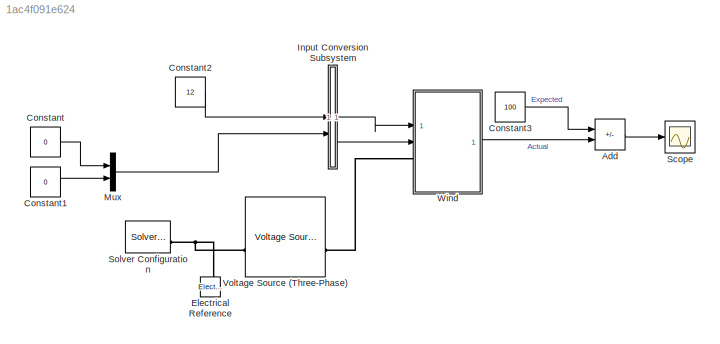
MODEL slx_1ac4f091e624
KIND model
CONFIG AbsTol = auto
CONFIG EnableMultiTasking = off
CONFIG FixedStep = auto
CONFIG MaxStep = auto
CONFIG MinStep = auto
CONFIG RelTol = 1e-3
CONFIG SampleTimeConstraint = Unconstrained
CONFIG SolverName = VariableStepAuto
CONFIG StartTime = 0.0
CONFIG StopTime = 10.0
BLOCK [Sum] Add
  IconShape = rectangular
  Inputs = +-
BLOCK [Constant] Constant
  Value = 0
BLOCK [Constant] Constant1
  Value = 0
BLOCK [Constant] Constant2
  Value = 12
BLOCK [Constant] Constant3
  Value = 100
BLOCK [Reference] Electrical Reference  REF=fl_lib/Electrical/Electrical Elements/Electrical Reference
  NameLocation = right
  SourceBlock = fl_lib/Electrical/Electrical Elements/Electrical Reference
  SourceType = Electrical Reference
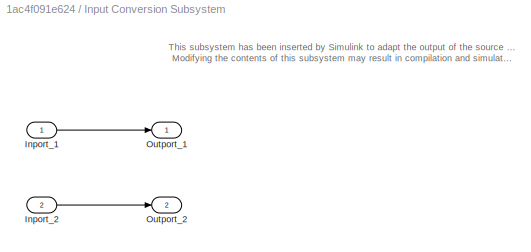
BLOCK [SubSystem] Input Conversion Subsystem
  AttributesFormatString = %<Description>
  Description = Signal spec.\nand routing
  Permissions = ReadOnly
  PermitHierarchicalResolution = ExplicitOnly
  Tag = __SLT_ICS__
  TreatAsGroupedWhenPropagatingVariantConditions = off
  UserDataPersistent = on
BLOCK [Inport] Input Conversion Subsystem/Inport_1
BLOCK [Inport] Input Conversion Subsystem/Inport_2
  Port = 2
BLOCK [Outport] Input Conversion Subsystem/Outport_1
BLOCK [Outport] Input Conversion Subsystem/Outport_2
  Port = 2
BLOCK [Mux] Mux
  DisplayOption = bar
  Inputs = 2
BLOCK [Scope] Scope
  ActiveDisplayYMaximum = 0.16137
  ActiveDisplayYMinimum = -0.01889
  DataLoggingVariableName = ScopeData2
  Floating = off
  GraphicalSettings = {"GraphicalSettings":{"LegacySettings":true,"Style":{"AxesScalingProperties":{"ScaleAxesLimitsAtStop":false},"Style":{"AxesColor":"[0 0 0]","ChannelNames":[""],"ColorOrder":"[1 0.909803921568627 0.392156862745098;0.149019607843137 0.549019607843137 0.866666666666667;0.96078431372549 0.466666666666667 0.16078431372549;0.286274509803922 0.858823529411765 0.250980392156863;0.752941176470588 0.3607843...<+513ch>
  MultipleDisplayCache = [{"MaxYLimMag":0.16137,"MaxYLimReal":0.16137,"MinYLimMag":0,"MinYLimReal":-0.01889,"PlotAsMagnitudePhase":false,"ShowGrid":true,"ShowLegend":false,"Title":"%<SignalLabel>","YLabel":""}]
  NumInputPorts = 1
  WasSavedAsWebScope = on
BLOCK [Reference] Solver Configuration  REF=nesl_utility/Solver
Configuration
  SourceBlock = nesl_utility/Solver\nConfiguration
  SourceType = Solver\nConfiguration
BLOCK [Reference] Voltage Source (Three-Phase)  REF=ee_lib/Sources/Voltage
Source
(Three-Phase)
  SourceBlock = ee_lib/Sources/Voltage\nSource\n(Three-Phase)
  SourceType = Voltage\nSource\n(Three-Phase)
BLOCK [SubSystem] Wind
  ReferencedSubsystem = Wind
  frequency = 60
  maxWindSpeed = 12
  rotorSpeed = 168.3*ones(1,13)
  turbineOutput = 50
  windRating = 100
  windSpeed = [0.0100 1 2 3 4 5 6 7 8 9 10 11 12]
  windingRatio = 1
ANNOTATION Input Conversion Subsystem: This subsystem has been inserted by Simulink to adapt the output of the source blocks to the interface required by the harnessed component. Modifying the contents of this subsystem may result in compilation and simulation failure.
LINE Add:1 -> Scope:1
LINE Constant1:1 -> Mux:2
LINE Constant2:1 -> Input Conversion Subsystem:1
LINE Constant3:1 -> Add:1
LINE Constant:1 -> Mux:1
LINE Input Conversion Subsystem/Inport_1:1 -> Input Conversion Subsystem/Outport_1:1
LINE Input Conversion Subsystem/Inport_2:1 -> Input Conversion Subsystem/Outport_2:1
LINE Input Conversion Subsystem:1 -> Wind:1
LINE Input Conversion Subsystem:2 -> Wind:2
LINE Mux:1 -> Input Conversion Subsystem:2
LINE Wind:1 -> Add:2
PNET net1: Electrical Reference:LConn1 -- Solver Configuration:RConn1 -- Voltage Source (Three-Phase):LConn1
PLINE Voltage Source (Three-Phase):RConn1 -- Wind:LConn1
note: PNET lines group multi-terminal physical nets as a canonical sorted terminal list (undirected conserving connections); 2-terminal nets keep the pairwise PLINE form
